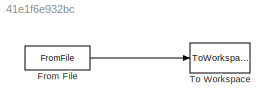
MODEL slx_41e1f6e932bc
KIND model
BLOCK [FromFile] From File
  FileName = inputs.mat
  SampleTime = 0
BLOCK [ToWorkspace] To Workspace
  MaxDataPoints = inf
  Ports = [1]
  SampleTime = -1
  SaveFormat = Timeseries
  VariableName = simout
LINE From File:1 -> To Workspace:1
